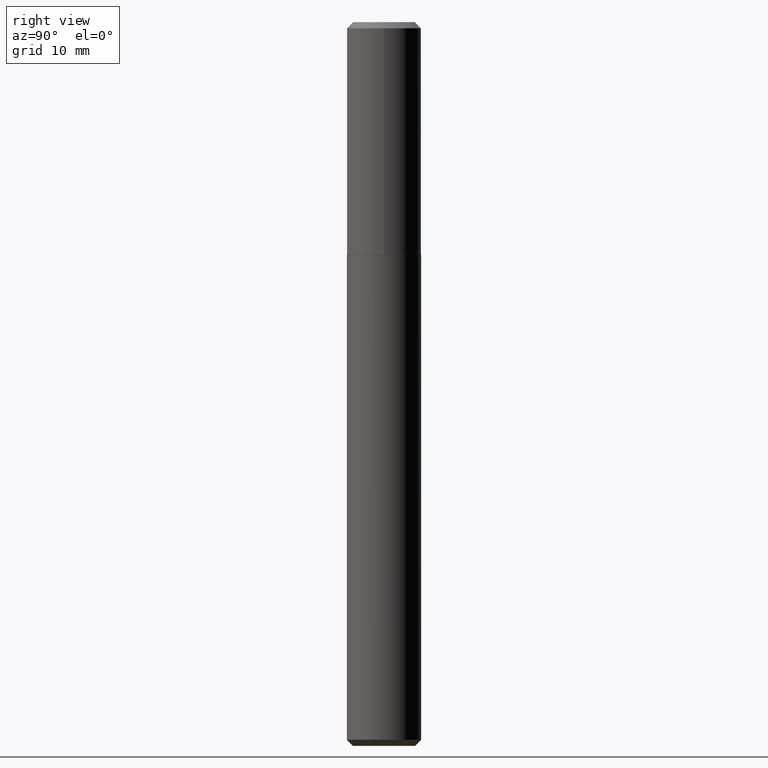
[diagram: clean part render]
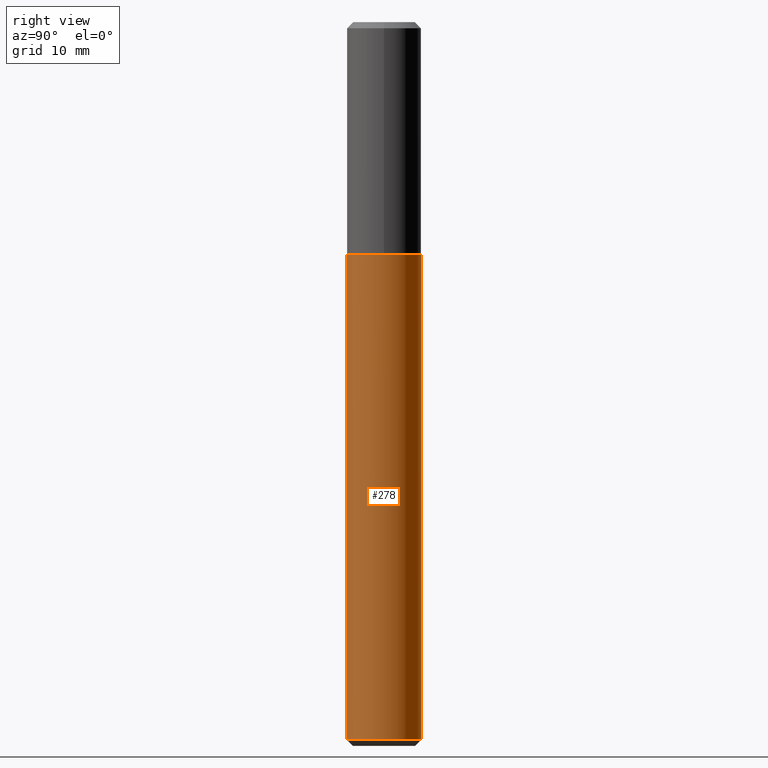
[diagram: same view with one face highlighted and labeled with its STEP entity id]
A machine part, right view. The second image highlights one B-rep face of the part: STEP entity #278.
In plain terms, the highlighted cylindrical surface (partial cylindrical patch) has radius 4.5644 mm, axis along (-0, 0, 1).
Its self-contained STEP definition (entity closure, byte-faithful):
#21 = VERTEX_POINT ( 'NONE', #381 ) ;
#35 = VECTOR ( 'NONE', #149, 39.37007874015748143 ) ;
#36 = CARTESIAN_POINT ( 'NONE',  ( -1.254838393180137519E-15, -0.1797000000000121833, -3.469999999999999307 ) ) ;
#45 = CARTESIAN_POINT ( 'NONE',  ( 8.486087693353520127E-29, -1.211499496789229457E-14, -3.469999999999999751 ) ) ;
#58 = ORIENTED_EDGE ( 'NONE', *, *, #414, .F. ) ;
#64 = AXIS2_PLACEMENT_3D ( 'NONE', #196, #369, #397 ) ;
#75 = FACE_OUTER_BOUND ( 'NONE', #394, .T. ) ;
#92 = DIRECTION ( 'NONE',  ( -6.982962677686265922E-15, -1.000000000000000000, 3.800567603873488271E-15 ) ) ;
#96 = EDGE_CURVE ( 'NONE', #21, #137, #362, .T. ) ;
#120 = DIRECTION ( 'NONE',  ( -2.445601401447863841E-29, 3.491291454880066432E-15, 1.000000000000000000 ) ) ;
#126 = VECTOR ( 'NONE', #164, 39.37007874015748143 ) ;
#132 = CYLINDRICAL_SURFACE ( 'NONE', #64, 0.1796999999999999986 ) ;
#137 = VERTEX_POINT ( 'NONE', #148 ) ;
#140 = ORIENTED_EDGE ( 'NONE', *, *, #144, .T. ) ;
#144 = EDGE_CURVE ( 'NONE', #272, #137, #409, .T. ) ;
#148 = CARTESIAN_POINT ( 'NONE',  ( 1.276845296160985024E-15, 0.1796999999999960851, -1.125000000000000666 ) ) ;
#149 = DIRECTION ( 'NONE',  ( -2.445601401447864121E-29, 3.491291454880066432E-15, 1.000000000000000000 ) ) ;
#162 = DIRECTION ( 'NONE',  ( -2.445601401447863841E-29, 3.491291454880066432E-15, 1.000000000000000000 ) ) ;
#164 = DIRECTION ( 'NONE',  ( -2.445601401447864121E-29, 3.491291454880066432E-15, 1.000000000000000000 ) ) ;
#167 = CARTESIAN_POINT ( 'NONE',  ( 2.751152406958278111E-29, -3.927916506198538435E-15, -1.124999999999999778 ) ) ;
#186 = AXIS2_PLACEMENT_3D ( 'NONE', #45, #162, #395 ) ;
#196 = CARTESIAN_POINT ( 'NONE',  ( 2.751152406958278111E-29, -3.927916506198538435E-15, -1.124999999999999778 ) ) ;
#197 = CARTESIAN_POINT ( 'NONE',  ( -1.254838393180194515E-15, -0.1797000000000039122, -1.124999999999999112 ) ) ;
#207 = ORIENTED_EDGE ( 'NONE', *, *, #310, .T. ) ;
#233 = CARTESIAN_POINT ( 'NONE',  ( 1.276845296160984235E-15, 0.1796999999999878139, -3.470000000000000195 ) ) ;
#239 = CIRCLE ( 'NONE', #186, 0.1796999999999999986 ) ;
#246 = VERTEX_POINT ( 'NONE', #36 ) ;
#260 = ORIENTED_EDGE ( 'NONE', *, *, #96, .F. ) ;
#272 = VERTEX_POINT ( 'NONE', #233 ) ;
#274 = LINE ( 'NONE', #197, #126 ) ;
#278 = ADVANCED_FACE ( 'NONE', ( #75 ), #132, .T. ) ;
#310 = EDGE_CURVE ( 'NONE', #246, #272, #239, .T. ) ;
#312 = AXIS2_PLACEMENT_3D ( 'NONE', #167, #120, #92 ) ;
#313 = CARTESIAN_POINT ( 'NONE',  ( 1.276845296160927240E-15, 0.1796999999999960851, -1.125000000000000666 ) ) ;
#362 = CIRCLE ( 'NONE', #312, 0.1796999999999999986 ) ;
#369 = DIRECTION ( 'NONE',  ( -2.445601401447863841E-29, 3.491291454880066432E-15, 1.000000000000000000 ) ) ;
#381 = CARTESIAN_POINT ( 'NONE',  ( -1.254838393180194515E-15, -0.1797000000000039122, -1.124999999999999112 ) ) ;
#394 = EDGE_LOOP ( 'NONE', ( #207, #140, #260, #58 ) ) ;
#395 = DIRECTION ( 'NONE',  ( -6.982962677686265922E-15, -1.000000000000000000, 3.040454083098790380E-15 ) ) ;
#397 = DIRECTION ( 'NONE',  ( -6.982962677686265922E-15, -1.000000000000000000, 3.800567603873488271E-15 ) ) ;
#409 = LINE ( 'NONE', #313, #35 ) ;
#414 = EDGE_CURVE ( 'NONE', #246, #21, #274, .T. ) ;